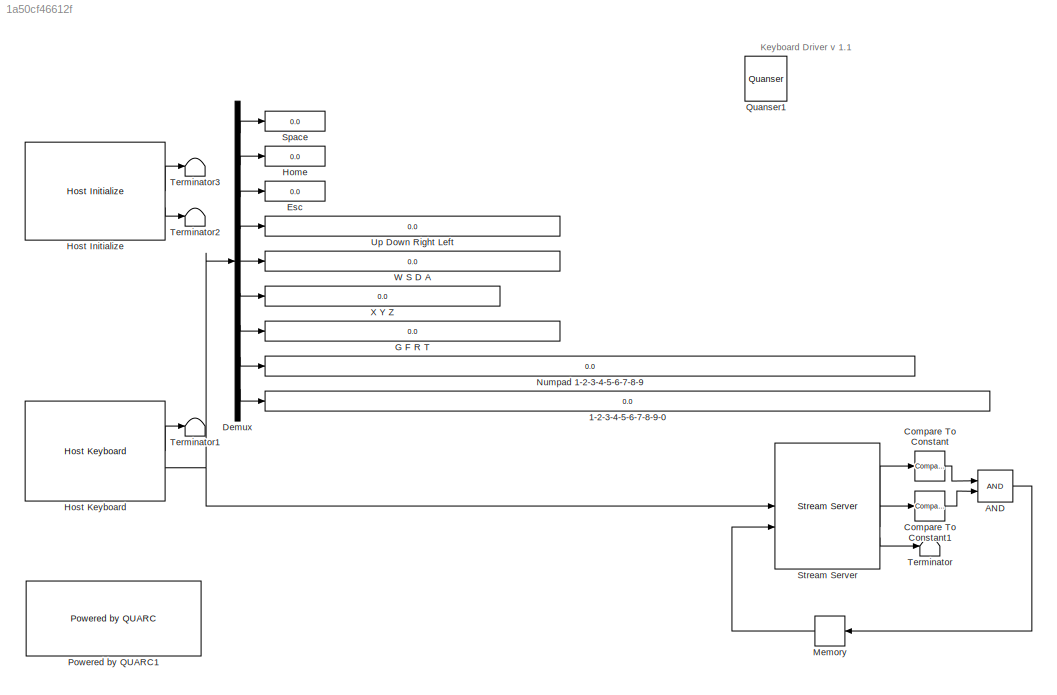
MODEL slx_1a50cf46612f
KIND model
CONFIG AbsTol = auto
CONFIG EnableMultiTasking = on
CONFIG FixedStep = 1/500
CONFIG MaxStep = auto
CONFIG MinStep = auto
CONFIG RelTol = 1e-3
CONFIG SampleTimeConstraint = Unconstrained
CONFIG SolverName = FixedStepDiscrete
CONFIG StartTime = 0.0
CONFIG StopTime = inf
BLOCK [Display] 1-2-3-4-5-6-7-8-9-0
  Decimation = 1
  NameLocation = right
BLOCK [Logic] AND
  AllPortsSameDT = off
  IconShape = distinctive
  OutDataTypeStr = boolean
BLOCK [Reference] Compare To Constant  REF=simulink/Logic and Bit
Operations/Compare
To Constant
  SourceBlock = simulink/Logic and Bit\nOperations/Compare\nTo Constant
  SourceType = Compare To Constant
BLOCK [Reference] Compare To Constant1  REF=simulink/Logic and Bit
Operations/Compare
To Constant
  SourceBlock = simulink/Logic and Bit\nOperations/Compare\nTo Constant
  SourceType = Compare To Constant
BLOCK [Demux] Demux
  Outputs = [1 1 1 4 4 3 4 9 10]
BLOCK [Display] Esc
  Decimation = 1
  NameLocation = right
BLOCK [Display] G F R T
  Decimation = 1
  NameLocation = right
BLOCK [Display] Home
  Decimation = 1
  NameLocation = right
BLOCK [Reference] Host Initialize  REF=quarc_library/Devices/Peripherals/Host/Host Initialize
  AttributesFormatString = "tcpip://localhost:18798"
  SourceBlock = quarc_library/Devices/Peripherals/Host/Host Initialize
  SourceProductName = QUARC Targets
  SourceType = Host Initialize
BLOCK [Reference] Host Keyboard  REF=quarc_library/Devices/Peripherals/Host/Host Keyboard
  SourceBlock = quarc_library/Devices/Peripherals/Host/Host Keyboard
  SourceProductName = QUARC Targets
  SourceType = Host Keyboard
BLOCK [Memory] Memory
  NameLocation = top
BLOCK [Display] Numpad 1-2-3-4-5-6-7-8-9 
  Decimation = 1
  NameLocation = right
BLOCK [Reference] Powered by QUARC1  REF=quarc_library/Logos/Powered by QUARC
  SourceBlock = quarc_library/Logos/Powered by QUARC
  SourceProductName = QUARC Targets
  SourceType = Powered by QUARC
BLOCK [Reference] Quanser1  REF=quarc_library/Logos/Quanser
  SourceBlock = quarc_library/Logos/Quanser
  SourceProductName = QUARC Targets
  SourceType = Powered by Quanser
BLOCK [Display] Space
  Decimation = 1
  NameLocation = right
BLOCK [Reference] Stream Server  REF=quarc_library/Communications/Basic/Stream Server
  AttributesFormatString = "tcpip://localhost:18799"
  SourceBlock = quarc_library/Communications/Basic/Stream Server
  SourceProductName = QUARC Targets
  SourceType = Stream Server
BLOCK [Terminator] Terminator
BLOCK [Terminator] Terminator1
BLOCK [Terminator] Terminator2
BLOCK [Terminator] Terminator3
BLOCK [Display] Up Down Right Left
  Decimation = 1
  NameLocation = right
BLOCK [Display] W  S  D  A
  Decimation = 1
  NameLocation = right
BLOCK [Display] X Y Z
  Decimation = 1
  NameLocation = right
ANNOTATION (root): Keyboard Driver v 1.1
LINE AND:1 -> Memory:1
LINE Compare To Constant1:1 -> AND:2
LINE Compare To Constant:1 -> AND:1
LINE Demux:1 -> Space:1
LINE Demux:2 -> Home:1
LINE Demux:3 -> Esc:1
LINE Demux:4 -> Up Down Right Left:1
LINE Demux:5 -> W  S  D  A:1
LINE Demux:6 -> X Y Z:1
LINE Demux:7 -> G F R T:1
LINE Demux:8 -> Numpad 1-2-3-4-5-6-7-8-9 :1
LINE Demux:9 -> 1-2-3-4-5-6-7-8-9-0:1
LINE Host Initialize:1 -> Terminator3:1
LINE Host Initialize:2 -> Terminator2:1
LINE Host Keyboard:1 -> Terminator1:1
NET Host Keyboard:2 -> Demux:1, Stream Server:1
LINE Memory:1 -> Stream Server:2
LINE Stream Server:1 -> Compare To Constant:1
LINE Stream Server:2 -> Compare To Constant1:1
LINE Stream Server:3 -> Terminator:1
note: NET lines group one-source signal fan-out (src -> all destinations, sorted); 1:1 wires keep LINE
